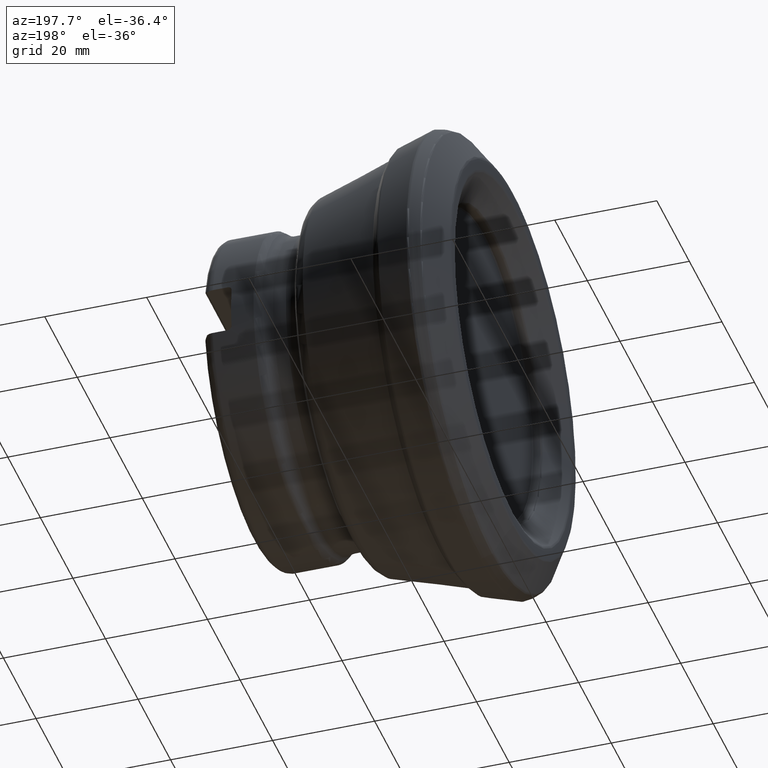
[diagram: clean part render]
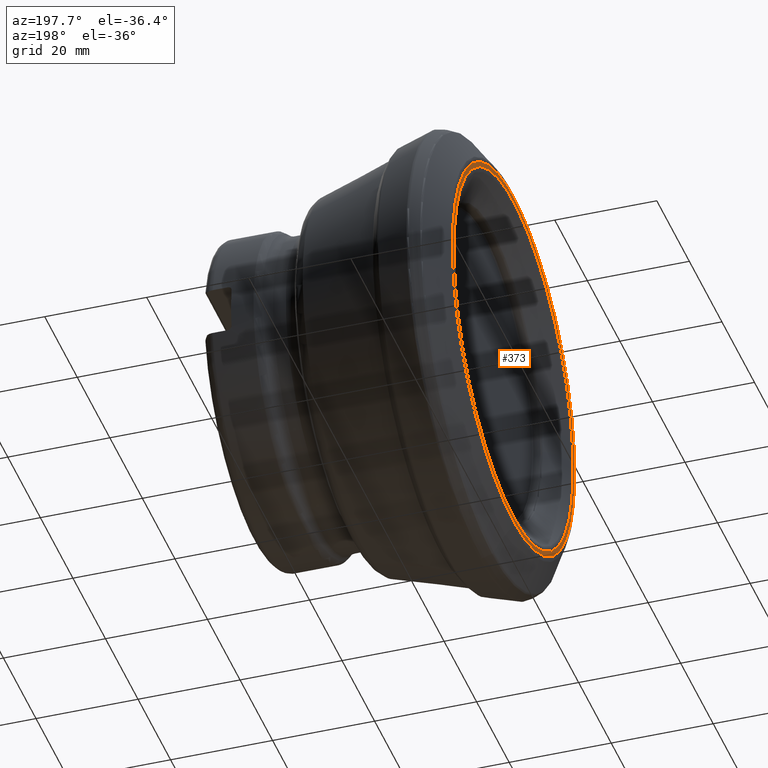
[diagram: same view with one face highlighted and labeled with its STEP entity id]
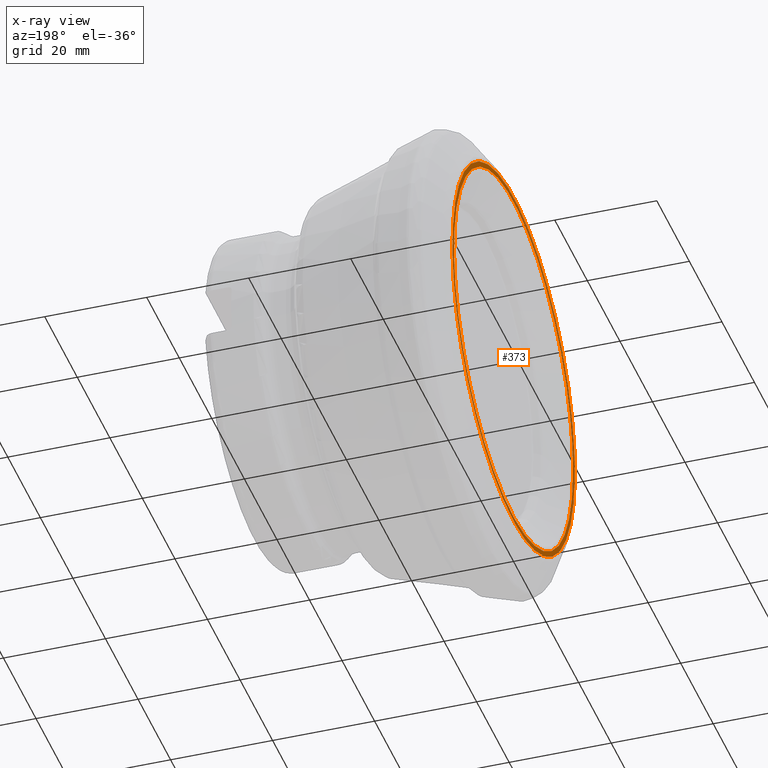
[diagram: x-ray of the same camera — body ghosted, the highlighted face saturated]
A machine part, auxiliary view. The second image highlights one B-rep face of the part: STEP entity #373.
The next image is the same camera in x-ray: the body ghosted, the highlighted face saturated — about 0% of this face is hidden behind the body in this view.
In plain terms, the highlighted face is a SurfaceOfRevolution surface.
Its self-contained STEP definition (entity closure, byte-faithful):
#116=SURFACE_OF_REVOLUTION('',#561,#137);
#137=AXIS1_PLACEMENT('',#1919,#1372);
#299=FACE_BOUND('',#505,.T.);
#300=FACE_BOUND('',#506,.T.);
#373=ADVANCED_FACE('',(#299,#300),#116,.F.);
#505=EDGE_LOOP('',(#766));
#506=EDGE_LOOP('',(#767));
#561=B_SPLINE_CURVE_WITH_KNOTS('',3,(#1914,#1915,#1916,#1917,#1918),
 .UNSPECIFIED.,.F.,.F.,(4,1,4),(0.,0.500000000073856,1.),.UNSPECIFIED.);
#766=ORIENTED_EDGE('',*,*,#971,.T.);
#767=ORIENTED_EDGE('',*,*,#970,.F.);
#862=VERTEX_POINT('',#1906);
#863=VERTEX_POINT('',#1913);
#970=EDGE_CURVE('',#862,#862,#1026,.T.);
#971=EDGE_CURVE('',#863,#863,#1027,.T.);
#1026=CIRCLE('',#1130,37.6059558366861);
#1027=CIRCLE('',#1131,36.5724678414509);
#1130=AXIS2_PLACEMENT_3D('',#1905,#1367,#1368);
#1131=AXIS2_PLACEMENT_3D('',#1912,#1370,#1371);
#1367=DIRECTION('',(1.,0.,0.));
#1368=DIRECTION('',(0.,0.,-1.));
#1370=DIRECTION('',(1.,0.,0.));
#1371=DIRECTION('',(0.,0.,-1.));
#1372=DIRECTION('',(1.,0.,0.));
#1905=CARTESIAN_POINT('',(-0.0104979109587562,0.,0.));
#1906=CARTESIAN_POINT('',(-0.0104979109587562,0.,-37.6059558366861));
#1912=CARTESIAN_POINT('',(-0.000338751119567128,0.,0.));
#1913=CARTESIAN_POINT('',(-0.000338751119567128,0.,-36.5724678414509));
#1914=CARTESIAN_POINT('',(-0.0104979109587562,-37.1389589022835,5.90810003683799));
#1915=CARTESIAN_POINT('',(-0.012996434684469,-36.9646148207748,5.91900059649879));
#1916=CARTESIAN_POINT('',(-0.0149688896283311,-36.6153494907116,5.93012046244675));
#1917=CARTESIAN_POINT('',(-0.00621983300065017,-36.2661591569638,5.91995298575401));
#1918=CARTESIAN_POINT('',(-0.000338751119567128,-36.0918672976848,5.90952781364721));
#1919=CARTESIAN_POINT('',(0.,0.,0.));